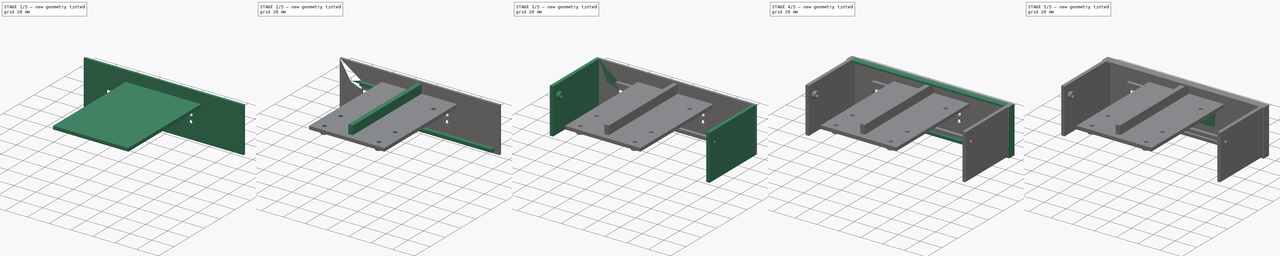
[diagram: build sequence overview — one tinted view per stage of 5, left to right]
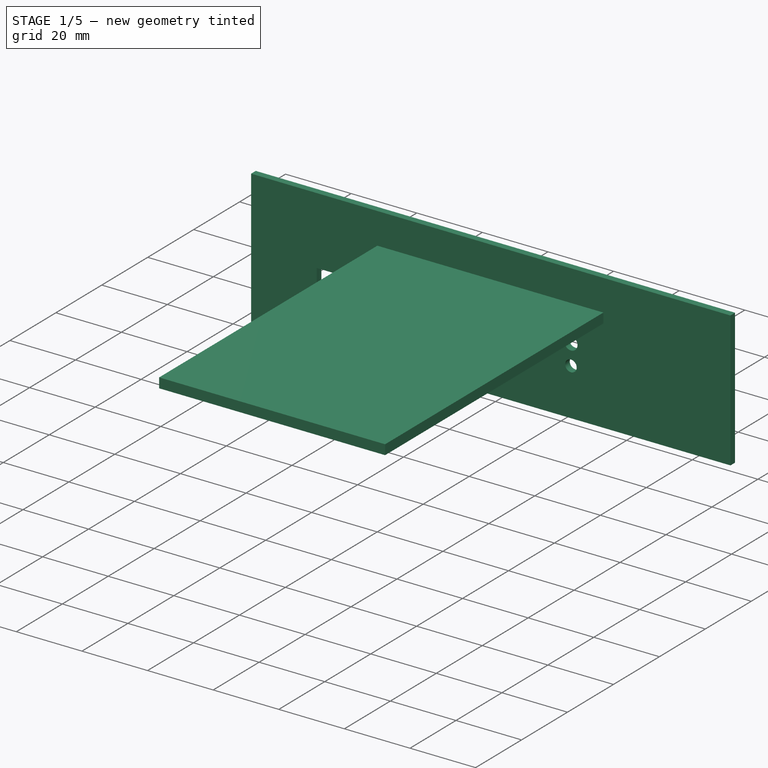
[diagram: stage 1 of 5 — iso view after this stage's code; geometry added in this stage tinted green]
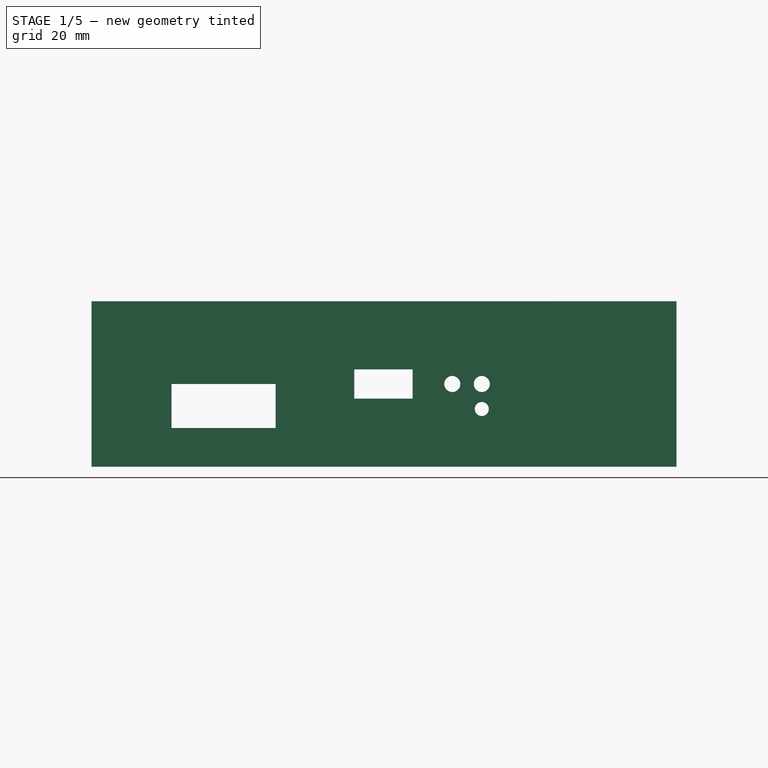
[diagram: stage 1 of 5 — front view after this stage's code; geometry added in this stage tinted green]
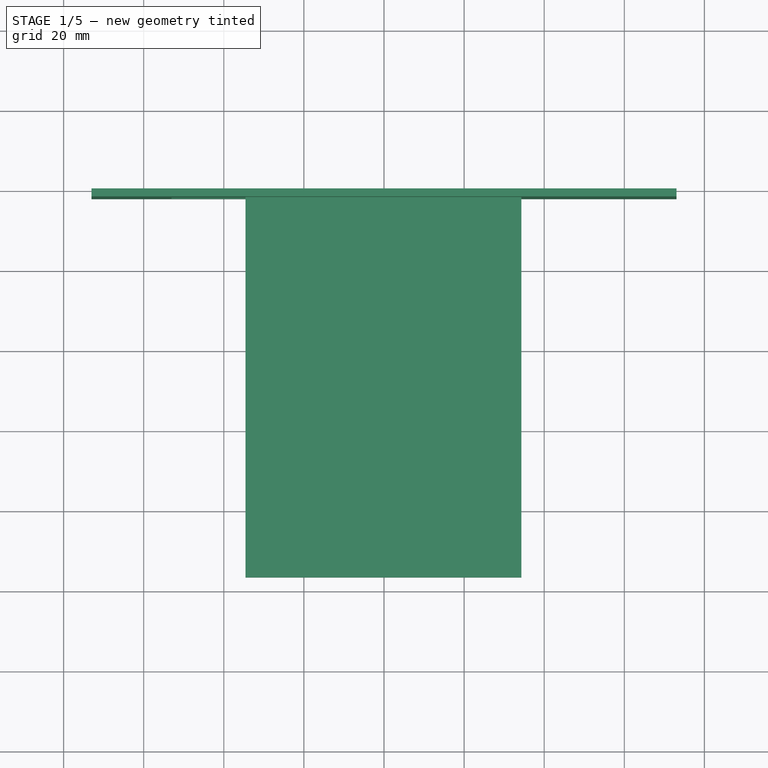
[diagram: stage 1 of 5 — top view after this stage's code; geometry added in this stage tinted green]
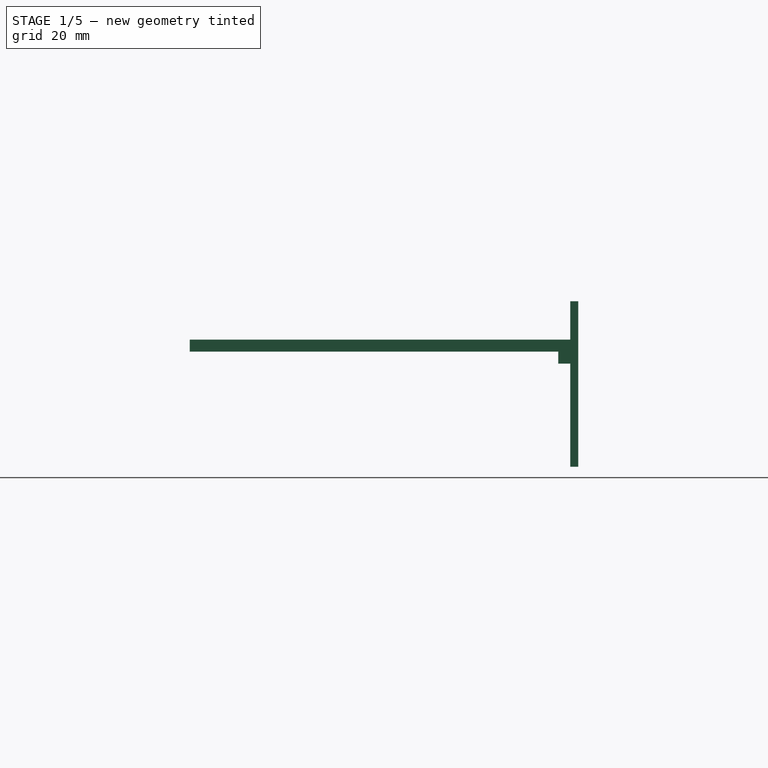
[diagram: stage 1 of 5 — right view after this stage's code; geometry added in this stage tinted green]
FCSTD DOCUMENT  (FreeCAD 0.21R33771 (Git))
Label: 525gotek
License: All rights reserved
LicenseURL: http://en.wikipedia.org/wiki/All_rights_reserved
objects: Sketcher::SketchObject×20, PartDesign::Pad×13, PartDesign::Pocket×7, PartDesign::Body×2, PartDesign::Fillet×2
note: 66 computed .brp shape members not serialized (recipe doc carries the construction recipe); baked Part::Feature solids carry a one-line shape summary decoded from their .brp

FEATURE [Sketcher::SketchObject] Sketch
  FullyConstrained = true
  MapMode = 5
  Placement = pos=(0,0,0) rot=(1,0,0;1.5708rad)
  Support = -> [XZ_Plane]
  sketch-geometry (4):
    g0: LineSegment StartX=-73.05 StartY=20.65 StartZ=0 EndX=73.05 EndY=20.65 EndZ=0
    g1: LineSegment StartX=73.05 StartY=20.65 StartZ=0 EndX=73.05 EndY=-20.65 EndZ=0
    g2: LineSegment StartX=73.05 StartY=-20.65 StartZ=0 EndX=-73.05 EndY=-20.65 EndZ=0
    g3: LineSegment StartX=-73.05 StartY=-20.65 StartZ=0 EndX=-73.05 EndY=20.65 EndZ=0
  constraints (11):
    c: Coincident(g0,g1)
    c: Coincident(g1,g2)
    c: Coincident(g2,g3)
    c: Coincident(g3,g0)
    c: Horizontal(g0)
    c: Horizontal(g2)
    c: Vertical(g1)
    c: Vertical(g3)
    c: Symmetric(g1,g0,g-1)
    c: DistanceX(g0,g0) = 146.1
    c: DistanceY(g3,g3) = 41.3
FEATURE [PartDesign::Pad] Pad
  Direction = (0,-1,-2e-16)
  Length = 2
  Length2 = 10
  Placement = pos=(0,0,0) rot=(1,0,0;1.5708rad)
  Profile = -> Sketch
  ReferenceAxis = -> Sketch [N_Axis]
  Type = 0
FEATURE [Sketcher::SketchObject] Sketch001
  ExternalGeometry = -> [Pad]
  FullyConstrained = true
  MapMode = 5
  Placement = pos=(0,0,0) rot=(-1,0,0;1.5708rad)
  Support = -> [Pad]
  sketch-geometry (23):
    g0: Circle CenterX=24.42 CenterY=0 CenterZ=0 NormalX=0 NormalY=0 NormalZ=1 AngleXU=0 Radius=1.645
    g1: Circle CenterX=17.05 CenterY=0 CenterZ=0 NormalX=0 NormalY=0 NormalZ=1 AngleXU=0 Radius=1.645
    g2: LineSegment StartX=-7.145 StartY=3.375 StartZ=0 EndX=6.855 EndY=3.375 EndZ=0
    g3: LineSegment StartX=6.855 StartY=3.375 StartZ=0 EndX=6.855 EndY=-3.375 EndZ=0
    g4: LineSegment StartX=6.855 StartY=-3.375 StartZ=0 EndX=-7.145 EndY=-3.375 EndZ=0
    g5: LineSegment StartX=-7.145 StartY=-3.375 StartZ=0 EndX=-7.145 EndY=3.375 EndZ=0
    g6: GeomPoint X=15.405 Y=0 Z=0
    g7: GeomPoint X=26.065 Y=0 Z=0
    g8: GeomPoint X=15.405 Y=0 Z=0
    g9: Circle CenterX=24.42 CenterY=6.25 CenterZ=0 NormalX=0 NormalY=0 NormalZ=1 AngleXU=0 Radius=1.75
    g10: Circle CenterX=17.05 CenterY=0 CenterZ=0 NormalX=0 NormalY=0 NormalZ=1 AngleXU=0 Radius=2
    g11: Circle CenterX=24.42 CenterY=0 CenterZ=0 NormalX=0 NormalY=0 NormalZ=1 AngleXU=0 Radius=2
    g12: GeomPoint X=15.05 Y=0 Z=0
    g13: LineSegment StartX=-7.425 StartY=3.655 StartZ=0 EndX=7.135 EndY=3.655 EndZ=0
    g14: LineSegment StartX=7.135 StartY=3.655 StartZ=0 EndX=7.135 EndY=-3.655 EndZ=0
    g15: LineSegment StartX=7.135 StartY=-3.655 StartZ=0 EndX=-7.425 EndY=-3.655 EndZ=0
    g16: LineSegment StartX=-7.425 StartY=-3.655 StartZ=0 EndX=-7.425 EndY=3.655 EndZ=0
    g17: GeomPoint X=-0.145 Y=0 Z=0
    g18: LineSegment StartX=-53.05 StartY=11 StartZ=0 EndX=-27.05 EndY=11 EndZ=0
    g19: LineSegment StartX=-27.05 StartY=11 StartZ=0 EndX=-27.05 EndY=0 EndZ=0
    g20: LineSegment StartX=-27.05 StartY=0 StartZ=0 EndX=-53.05 EndY=0 EndZ=0
    g21: LineSegment StartX=-53.05 StartY=0 StartZ=0 EndX=-53.05 EndY=11 EndZ=0
    g22: LineSegment StartX=6.855 StartY=3.375 StartZ=0 EndX=-7.145 EndY=-3.375 EndZ=0
  constraints (58):
    c: PointOnObject(g0,g-1)
    c: PointOnObject(g1,g-1)
    c: Coincident(g2,g3)
    c: Coincident(g3,g4)
    c: Coincident(g4,g5)
    c: Coincident(g5,g2)
    c: Horizontal(g2)
    c: Horizontal(g4)
    c: Vertical(g5)
    c: Symmetric(g3,g2,g-1)
    c: Diameter(g1) = 3.29
    c: Equal(g1,g0)
    c: PointOnObject(g7,g0)
    c: Coincident(g8,g6)
    c: PointOnObject(g6,g1)
    c: PointOnObject(g6,g-1)
    c: PointOnObject(g7,g-1)
    c: DistanceX(g6,g7) = 10.66
    c: DistanceX(g2,g6) = 8.55
    c: DistanceX(g2,g2) = 14
    c: DistanceY(g5,g5) = 6.75
    c: Vertical(g0,g9)
    c: DistanceY(g0,g9) = 6.25
    c: Diameter(g9) = 3.5
    c: Coincident(g10,g1)
    c: Coincident(g11,g0)
    c: PointOnObject(g12,g10)
    c: PointOnObject(g12,g-1)
    c: DistanceX(g12,g6) = 0.355
    c: Equal(g10,g11)
    c: Coincident(g13,g14)
    c: Coincident(g14,g15)
    c: Coincident(g15,g16)
    c: Coincident(g16,g13)
    c: Horizontal(g13)
    c: Horizontal(g15)
    c: Vertical(g14)
    c: Vertical(g16)
    c: DistanceX(g3,g14) = 0.28
    c: DistanceY(g14,g3) = 0.28
    c: PointOnObject(g17,g-1)
    c: Symmetric(g13,g14,g17)
    c: Coincident(g18,g19)
    c: Coincident(g19,g20)
    c: Coincident(g20,g21)
    c: Coincident(g21,g18)
    c: Horizontal(g18)
    c: Horizontal(g20)
    c: Vertical(g19)
    c: DistanceX(g18,g18) = 26
    c: DistanceY(g21,g21) = 11
    c: Vertical(g21)
    c: PointOnObject(g19,g-1)
    c: DistanceX(g10,g-3) = 56
    c: Coincident(g22,g2)
    c: Coincident(g22,g4)
    c: PointOnObject(g17,g22)
    c: DistanceX(g-3,g18) = 20
FEATURE [PartDesign::Pocket] Pocket
  BaseFeature = -> Pad
  Direction = (0,-1,-2e-16)
  Length = 5
  Length2 = 5
  Placement = pos=(0,0,0) rot=(1,0,0;1.5708rad)
  Profile = -> Sketch001
  ReferenceAxis = -> Sketch001 [N_Axis]
  Type = 0
FEATURE [Sketcher::SketchObject] Sketch002
  ExternalGeometry = -> [Pocket]
  FullyConstrained = false
  MapMode = 5
  Placement = pos=(0,-2,-4e-16) rot=(1,0,0;1.5708rad)
  Support = -> [Pocket]
  sketch-geometry (11):
    g0: LineSegment StartX=29.3 StartY=5.095 StartZ=0 EndX=-9.53 EndY=5.095 EndZ=0
    g1: LineSegment StartX=-9.53 StartY=5.095 StartZ=0 EndX=-9.53 EndY=8.095 EndZ=0
    g2: LineSegment StartX=-9.53 StartY=8.095 StartZ=0 EndX=29.3 EndY=8.095 EndZ=0
    g3: LineSegment StartX=29.3 StartY=8.095 StartZ=0 EndX=29.3 EndY=5.095 EndZ=0
    g4: LineSegment StartX=-4.21137 StartY=-3.405 StartZ=0 EndX=-17.5797 EndY=-3.405 EndZ=0
    g5: LineSegment StartX=-17.5797 StartY=-3.405 StartZ=0 EndX=-17.5797 EndY=3.405 EndZ=0
    g6: LineSegment StartX=-17.5797 StartY=3.405 StartZ=0 EndX=-4.21137 EndY=3.405 EndZ=0
    g7: LineSegment StartX=-4.21137 StartY=3.405 StartZ=0 EndX=-4.21137 EndY=-3.405 EndZ=0
    g8: Circle CenterX=24.42 CenterY=0 CenterZ=0 NormalX=0 NormalY=0 NormalZ=1 AngleXU=0 Radius=1.85
    g9: GeomPoint X=22.57 Y=0 Z=0
    g10: GeomPoint X=22.42 Y=0 Z=0
  constraints (27):
    c: Coincident(g0,g1)
    c: Coincident(g1,g2)
    c: Coincident(g2,g3)
    c: Coincident(g3,g0)
    c: Horizontal(g2)
    c: Vertical(g1)
    c: Vertical(g3)
    c: DistanceY(g3,g3) = 3
    c: Coincident(g4,g5)
    c: Coincident(g5,g6)
    c: Coincident(g6,g7)
    c: Coincident(g7,g4)
    c: Horizontal(g4)
    c: Horizontal(g6)
    c: Vertical(g5)
    c: Symmetric(g4,g6,g-1)
    c: DistanceY(g-3,g4) = 0.25
    c: DistanceY(g4,g0) = 8.5
    c: DistanceX(g2,g2) = 38.83
    c: Coincident(g8,g-4)
    c: PointOnObject(g9,g8)
    c: PointOnObject(g10,g-4)
    c: PointOnObject(g10,g-1)
    c: PointOnObject(g9,g-1)
    c: DistanceX(g10,g9) = 0.15
    c: DistanceX(g9,g0) = 6.73
    c: Horizontal(g0)
FEATURE [PartDesign::Pad] Pad001
  BaseFeature = -> Pocket
  Direction = (0,-1,-2e-16)
  Length = 3
  Length2 = 10
  Placement = pos=(0,0,0) rot=(1,0,0;1.5708rad)
  Profile = -> Sketch002
  ReferenceAxis = -> Sketch002 [N_Axis]
  Type = 0
FEATURE [Sketcher::SketchObject] Sketch003
  ExternalGeometry = -> [Pad001]
  FullyConstrained = false
  MapMode = 5
  Placement = pos=(0,-2,-4e-16) rot=(1,0,0;1.5708rad)
  Support = -> [Pad001]
  sketch-geometry (8):
    g0: LineSegment StartX=29.3 StartY=8.095 StartZ=0 EndX=-40.2118 EndY=8.095 EndZ=0
    g1: LineSegment StartX=-40.2118 StartY=8.095 StartZ=0 EndX=-40.2118 EndY=5.095 EndZ=0
    g2: LineSegment StartX=-40.2118 StartY=5.095 StartZ=0 EndX=29.3 EndY=5.095 EndZ=0
    g3: LineSegment StartX=29.3 StartY=5.095 StartZ=0 EndX=29.3 EndY=8.095 EndZ=0
    g4: LineSegment StartX=-34.58 StartY=8.095 StartZ=0 EndX=34.3 EndY=8.095 EndZ=0
    g5: LineSegment StartX=34.3 StartY=11.095 StartZ=0 EndX=34.3 EndY=8.095 EndZ=0
    g6: LineSegment StartX=34.3 StartY=11.095 StartZ=0 EndX=-34.58 EndY=11.095 EndZ=0
    g7: LineSegment StartX=-34.58 StartY=8.095 StartZ=0 EndX=-34.58 EndY=11.095 EndZ=0
  constraints (21):
    c: DistanceX(g4,g4) = 68.88
    c: DistanceX(g0,g4) = 5
    c: Horizontal(g0)
    c: Coincident(g0,g3)
    c: Coincident(g0,g-3)
    c: Coincident(g0,g1)
    c: Coincident(g1,g2)
    c: Coincident(g2,g3)
    c: Coincident(g2,g-3)
    c: Vertical(g1)
    c: Horizontal(g2)
    c: PointOnObject(g0,g4)
    c: Horizontal(g4)
    c: DistanceY(g7,g7) = 3
    c: Coincident(g7,g4)
    c: Vertical(g7)
    c: Coincident(g6,g7)
    c: Coincident(g5,g4)
    c: Coincident(g6,g5)
    c: Horizontal(g6)
    c: Vertical(g5)
FEATURE [PartDesign::Pad] Pad002
  BaseFeature = -> Pad001
  Direction = (0,-1,-2e-16)
  Length = 95
  Length2 = 10
  Placement = pos=(0,0,0) rot=(1,0,0;1.5708rad)
  Profile = -> Sketch003
  ReferenceAxis = -> Sketch003 [N_Axis]
  Type = 0
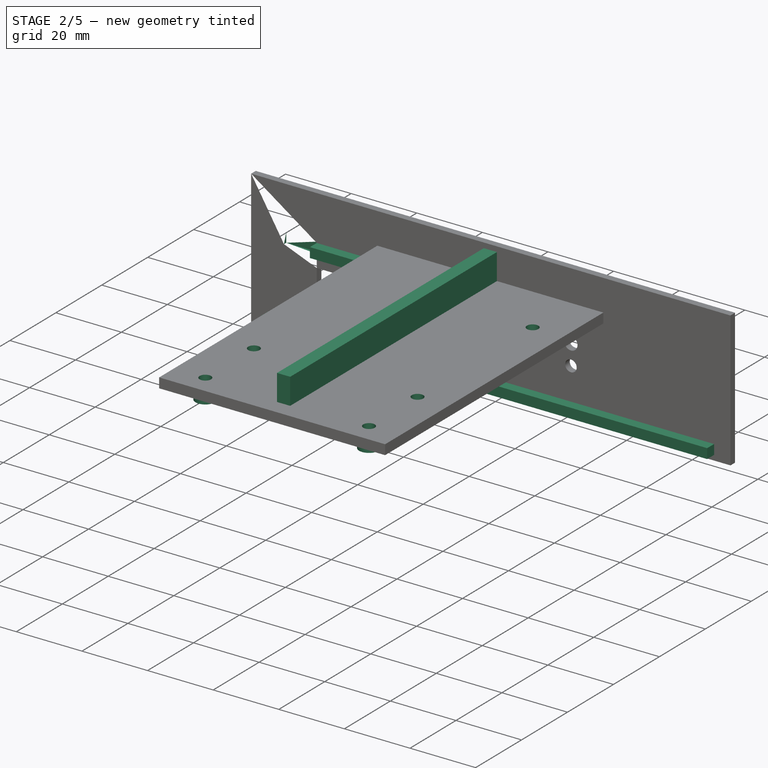
[diagram: stage 2 of 5 — iso view after this stage's code; geometry added in this stage tinted green]
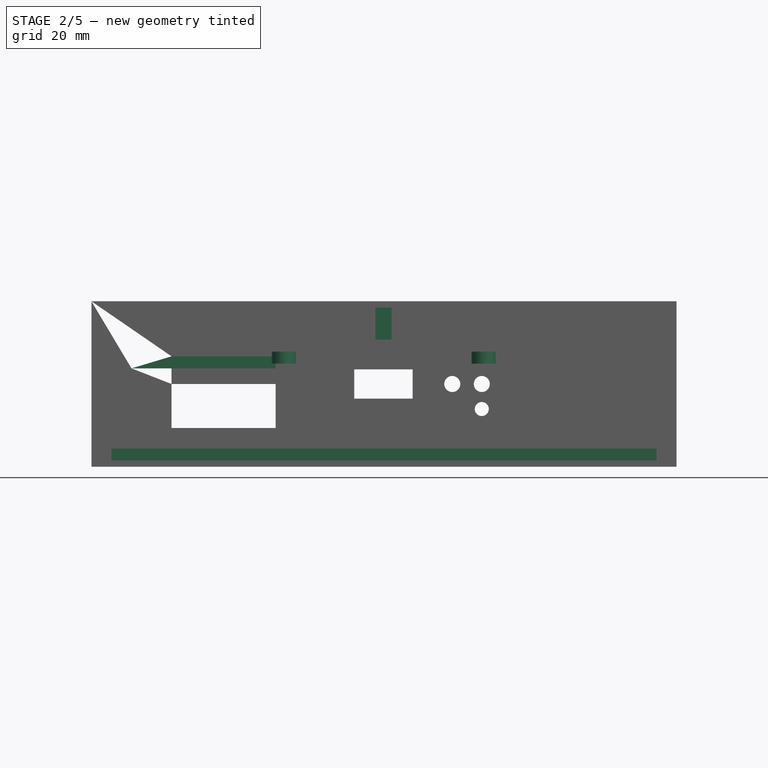
[diagram: stage 2 of 5 — front view after this stage's code; geometry added in this stage tinted green]
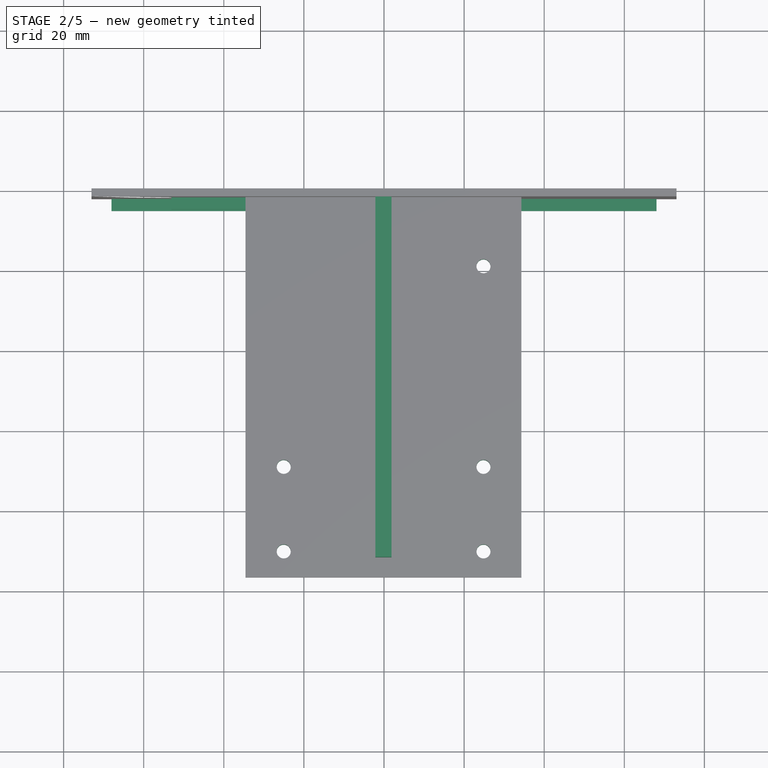
[diagram: stage 2 of 5 — top view after this stage's code; geometry added in this stage tinted green]
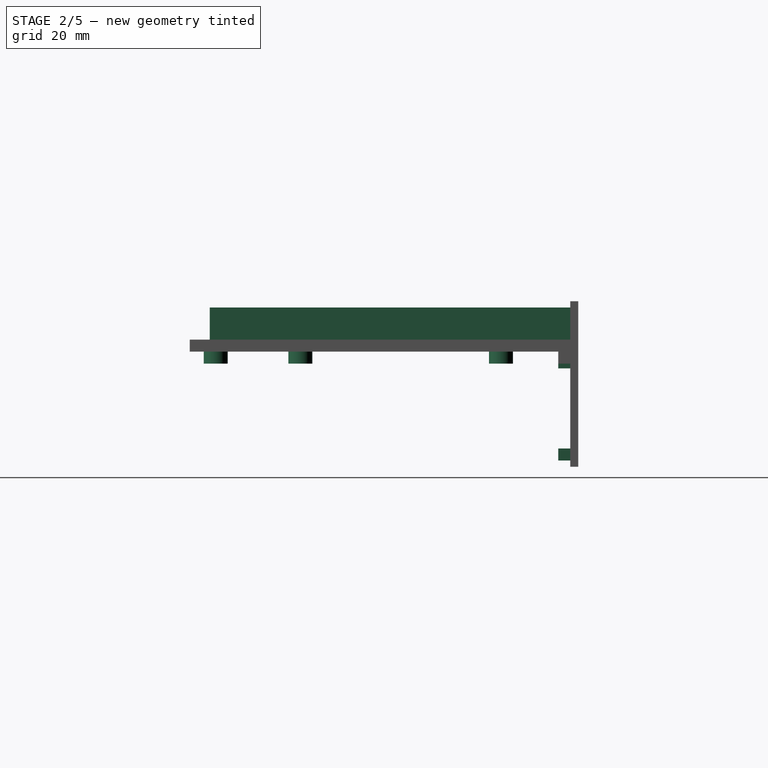
[diagram: stage 2 of 5 — right view after this stage's code; geometry added in this stage tinted green]
FEATURE [Sketcher::SketchObject] Sketch004
  ExternalGeometry = -> [Pad002]
  FullyConstrained = false
  MapMode = 5
  Placement = pos=(0,-1.8e-15,8.095) rot=(1,0,0;3.14159rad)
  Support = -> [Pad002]
  sketch-geometry (15):
    g0: LineSegment StartX=26.4 StartY=94.0918 StartZ=0 EndX=26.4 EndY=5.21614 EndZ=0
    g1: LineSegment StartX=-26.6 StartY=95.5109 StartZ=0 EndX=-26.6 EndY=9.0836 EndZ=0
    g2: Circle CenterX=24.84 CenterY=69.38 CenterZ=0 NormalX=0 NormalY=0 NormalZ=1 AngleXU=0 Radius=1.56
    g3: Circle CenterX=24.84 CenterY=90.5 CenterZ=0 NormalX=0 NormalY=0 NormalZ=1 AngleXU=0 Radius=1.56
    g4: Circle CenterX=-25.04 CenterY=90.5 CenterZ=0 NormalX=0 NormalY=0 NormalZ=1 AngleXU=0 Radius=1.56
    g5: Circle CenterX=-25.04 CenterY=69.38 CenterZ=0 NormalX=0 NormalY=0 NormalZ=1 AngleXU=0 Radius=1.56
    g6: LineSegment StartX=30.6456 StartY=17.72 StartZ=0 EndX=-49.8092 EndY=17.72 EndZ=0
    g7: Circle CenterX=24.84 CenterY=19.28 CenterZ=0 NormalX=0 NormalY=0 NormalZ=1 AngleXU=0 Radius=1.56
    g8: LineSegment StartX=19.339 StartY=70.94 StartZ=0 EndX=-43.6504 EndY=70.94 EndZ=0
    g9: LineSegment StartX=20.4825 StartY=88.94 StartZ=0 EndX=-45.1234 EndY=88.94 EndZ=0
    g10: Circle CenterX=24.84 CenterY=19.28 CenterZ=0 NormalX=0 NormalY=0 NormalZ=1 AngleXU=0 Radius=3
    g11: Circle CenterX=24.84 CenterY=69.38 CenterZ=0 NormalX=0 NormalY=0 NormalZ=1 AngleXU=0 Radius=3
    g12: Circle CenterX=24.84 CenterY=90.5 CenterZ=0 NormalX=0 NormalY=0 NormalZ=1 AngleXU=0 Radius=3
    g13: Circle CenterX=-25.04 CenterY=90.5 CenterZ=0 NormalX=0 NormalY=0 NormalZ=1 AngleXU=0 Radius=3
    g14: Circle CenterX=-25.04 CenterY=69.38 CenterZ=0 NormalX=0 NormalY=0 NormalZ=1 AngleXU=0 Radius=3
  constraints (35):
    c: Vertical(g0)
    c: Vertical(g1)
    c: Tangent(g4,g1)
    c: Tangent(g5,g1)
    c: Equal(g2,g3)
    c: Diameter(g2) = 3.12
    c: Equal(g4,g5)
    c: Equal(g5,g3)
    c: Horizontal(g4,g3)
    c: Horizontal(g5,g2)
    c: Horizontal(g6)
    c: DistanceY(g-3,g6) = 15.72
    c: Equal(g7,g2)
    c: Tangent(g7,g6)
    c: DistanceX(g0,g-4) = 2.9
    c: Horizontal(g8)
    c: Tangent(g2,g8)
    c: DistanceY(g6,g8) = 53.22
    c: Horizontal(g9)
    c: Tangent(g9,g4)
    c: DistanceY(g8,g9) = 18
    c: DistanceX(g1,g0) = 53
    c: Coincident(g10,g7)
    c: Coincident(g11,g2)
    c: Coincident(g12,g3)
    c: Coincident(g13,g4)
    c: Coincident(g14,g5)
    c: Equal(g10,g11)
    c: Equal(g11,g12)
    c: Equal(g12,g13)
    c: Equal(g13,g14)
    c: Diameter(g14) = 6
    c: Tangent(g7,g0)
    c: Vertical(g12,g11)
    c: Vertical(g11,g10)
FEATURE [PartDesign::Pad] Pad003
  BaseFeature = -> Pad002
  Direction = (0,2e-16,-1)
  Length = 3
  Length2 = 10
  Placement = pos=(0,0,0) rot=(1,0,0;1.5708rad)
  Profile = -> Sketch004
  ReferenceAxis = -> Sketch004 [N_Axis]
  Type = 0
FEATURE [Sketcher::SketchObject] Sketch005
  ExternalGeometry = -> [Pad003]
  FullyConstrained = true
  MapMode = 5
  Placement = pos=(0,-1.1e-15,5.095) rot=(1,0,0;3.14159rad)
  Support = -> [Pad003]
  sketch-geometry (5):
    g0: Circle CenterX=-25.04 CenterY=90.5 CenterZ=0 NormalX=0 NormalY=0 NormalZ=1 AngleXU=0 Radius=1.75
    g1: Circle CenterX=-25.04 CenterY=69.38 CenterZ=0 NormalX=0 NormalY=0 NormalZ=1 AngleXU=0 Radius=1.75
    g2: Circle CenterX=24.84 CenterY=90.5 CenterZ=0 NormalX=0 NormalY=0 NormalZ=1 AngleXU=0 Radius=1.75
    g3: Circle CenterX=24.84 CenterY=69.38 CenterZ=0 NormalX=0 NormalY=0 NormalZ=1 AngleXU=0 Radius=1.75
    g4: Circle CenterX=24.84 CenterY=19.28 CenterZ=0 NormalX=0 NormalY=0 NormalZ=1 AngleXU=0 Radius=1.75
  constraints (10):
    c: Coincident(g0,g-3)
    c: Coincident(g1,g-4)
    c: Coincident(g2,g-5)
    c: Coincident(g3,g-6)
    c: Coincident(g4,g-7)
    c: Equal(g4,g3)
    c: Equal(g3,g2)
    c: Equal(g2,g0)
    c: Equal(g0,g1)
    c: Diameter(g1) = 3.5
FEATURE [PartDesign::Pocket] Pocket001
  BaseFeature = -> Pad003
  Direction = (0,-2e-16,1)
  Length = 5
  Length2 = 5
  Placement = pos=(0,0,0) rot=(1,0,0;1.5708rad)
  Profile = -> Sketch005
  ReferenceAxis = -> Sketch005 [N_Axis]
  Type = 1
FEATURE [Sketcher::SketchObject] Sketch006
  ExternalGeometry = -> [Pocket001]
  FullyConstrained = false
  MapMode = 5
  Placement = pos=(0,-2.5e-15,11.095) rot=(0,0,1;3.14159rad)
  Support = -> [Pocket001]
  sketch-geometry (5):
    g0: LineSegment StartX=0.14 StartY=100.877 StartZ=0 EndX=0.14 EndY=68.1977 EndZ=0
    g1: LineSegment StartX=-1.86 StartY=92 StartZ=0 EndX=2.14 EndY=92 EndZ=0
    g2: LineSegment StartX=2.14 StartY=92 StartZ=0 EndX=2.14 EndY=2 EndZ=0
    g3: LineSegment StartX=2.14 StartY=2 StartZ=0 EndX=-1.86 EndY=2 EndZ=0
    g4: LineSegment StartX=-1.86 StartY=2 StartZ=0 EndX=-1.86 EndY=92 EndZ=0
  constraints (12):
    c: Symmetric(g-4,g-4,g0)
    c: Coincident(g1,g2)
    c: Coincident(g2,g3)
    c: Coincident(g3,g4)
    c: Coincident(g4,g1)
    c: Horizontal(g3)
    c: Vertical(g2)
    c: Vertical(g4)
    c: PointOnObject(g2,g-3)
    c: Symmetric(g1,g1,g0)
    c: DistanceX(g1,g1) = 4
    c: DistanceY(g1,g-4) = 5
FEATURE [PartDesign::Pad] Pad004
  BaseFeature = -> Pocket001
  Direction = (0,-2e-16,1)
  Length = 8
  Length2 = 10
  Placement = pos=(0,0,0) rot=(1,0,0;1.5708rad)
  Profile = -> Sketch006
  ReferenceAxis = -> Sketch006 [N_Axis]
  Type = 0
FEATURE [Sketcher::SketchObject] Sketch007
  ExternalGeometry = -> [Pad004]
  FullyConstrained = false
  MapMode = 5
  Placement = pos=(0,-2,-4e-16) rot=(1,0,0;1.5708rad)
  Support = -> [Pad004]
  sketch-geometry (10):
    g0: LineSegment StartX=68.05 StartY=-19.095 StartZ=0 EndX=-68.05 EndY=-19.095 EndZ=0
    g1: LineSegment StartX=-68.05 StartY=-19.095 StartZ=0 EndX=-68.05 EndY=-16.095 EndZ=0
    g2: LineSegment StartX=-53.05 StartY=6.905 StartZ=0 EndX=-27.05 EndY=6.905 EndZ=0
    g3: LineSegment StartX=-27.05 StartY=6.905 StartZ=0 EndX=-27.05 EndY=3.905 EndZ=0
    g4: LineSegment StartX=-27.05 StartY=3.905 StartZ=0 EndX=-53.05 EndY=3.905 EndZ=0
    g5: LineSegment StartX=-53.05 StartY=3.905 StartZ=0 EndX=-53.05 EndY=6.905 EndZ=0
    g6: LineSegment StartX=-33.8803 StartY=-5.5 StartZ=0 EndX=-70.2787 EndY=-5.5 EndZ=0
    g7: LineSegment StartX=68.05 StartY=-19.095 StartZ=0 EndX=68.05 EndY=-16.095 EndZ=0
    g8: LineSegment StartX=-68.05 StartY=-16.095 StartZ=0 EndX=68.05 EndY=-16.095 EndZ=0
    g9: GeomPoint X=-28.04 Y=-16.095 Z=0
  constraints (26):
    c: Coincident(g0,g1)
    c: Horizontal(g0)
    c: Vertical(g1)
    c: Coincident(g2,g3)
    c: Coincident(g3,g4)
    c: Coincident(g4,g5)
    c: Coincident(g5,g2)
    c: Horizontal(g2)
    c: Horizontal(g4)
    c: Vertical(g3)
    c: Vertical(g5)
    c: DistanceY(g1,g4) = 20
    c: Equal(g5,g1)
    c: DistanceY(g5,g5) = 3
    c: Vertical(g-3,g4)
    c: Vertical(g3,g-3)
    c: Coincident(g7,g0)
    c: Vertical(g7)
    c: Coincident(g8,g1)
    c: Coincident(g8,g7)
    c: Horizontal(g8)
    c: PointOnObject(g9,g8)
    c: Symmetric(g-3,g-4,g6)
    c: Symmetric(g-5,g9,g6)
    c: DistanceX(g0,g-8) = 5
    c: DistanceX(g-7,g0) = 5
FEATURE [PartDesign::Pad] Pad005
  BaseFeature = -> Pad004
  Direction = (0,-1,-2e-16)
  Length = 3
  Length2 = 10
  Placement = pos=(0,0,0) rot=(1,0,0;1.5708rad)
  Profile = -> Sketch007
  ReferenceAxis = -> Sketch007 [N_Axis]
  Type = 0
FEATURE [Sketcher::SketchObject] Sketch008
  ExternalGeometry = -> [Pad005]
  FullyConstrained = true
  MapMode = 5
  Placement = pos=(0,-2,-4e-16) rot=(1,0,0;1.5708rad)
  Support = -> [Pad005]
  sketch-geometry (8):
    g0: LineSegment StartX=-63.05 StartY=6.905 StartZ=0 EndX=-53.05 EndY=6.905 EndZ=0
    g1: LineSegment StartX=-53.05 StartY=6.905 StartZ=0 EndX=-53.05 EndY=6.905 EndZ=0
    g2: LineSegment StartX=-53.05 StartY=6.905 StartZ=0 EndX=-63.05 EndY=6.905 EndZ=0
    g3: LineSegment StartX=-63.05 StartY=6.905 StartZ=0 EndX=-63.05 EndY=6.905 EndZ=0
    g4: LineSegment StartX=-53.05 StartY=6.905 StartZ=0 EndX=-63.05 EndY=6.905 EndZ=0
    g5: LineSegment StartX=-63.05 StartY=6.905 StartZ=0 EndX=-63.05 EndY=3.905 EndZ=0
    g6: LineSegment StartX=-63.05 StartY=3.905 StartZ=0 EndX=-53.05 EndY=3.905 EndZ=0
    g7: LineSegment StartX=-53.05 StartY=3.905 StartZ=0 EndX=-53.05 EndY=6.905 EndZ=0
  constraints (22):
    c: Coincident(g0,g1)
    c: Coincident(g1,g2)
    c: Coincident(g2,g3)
    c: Coincident(g3,g0)
    c: Horizontal(g0)
    c: Horizontal(g2)
    c: Vertical(g1)
    c: Vertical(g3)
    c: Horizontal(g1,g-3)
    c: Coincident(g4,g5)
    c: Coincident(g5,g6)
    c: Coincident(g6,g7)
    c: Coincident(g7,g4)
    c: Horizontal(g4)
    c: Horizontal(g6)
    c: Vertical(g5)
    c: Vertical(g7)
    c: Horizontal(g6,g-4)
    c: Coincident(g-3,g0)
    c: Coincident(g4,g-4)
    c: Equal(g2,g6)
    c: DistanceX(g2,g2) = 10
FEATURE [PartDesign::Pocket] Pocket002
  BaseFeature = -> Pad005
  Direction = (0,1,2e-16)
  Length = 1
  Length2 = 5
  Placement = pos=(0,0,0) rot=(1,0,0;1.5708rad)
  Profile = -> Sketch008
  ReferenceAxis = -> Sketch008 [N_Axis]
  Type = 0
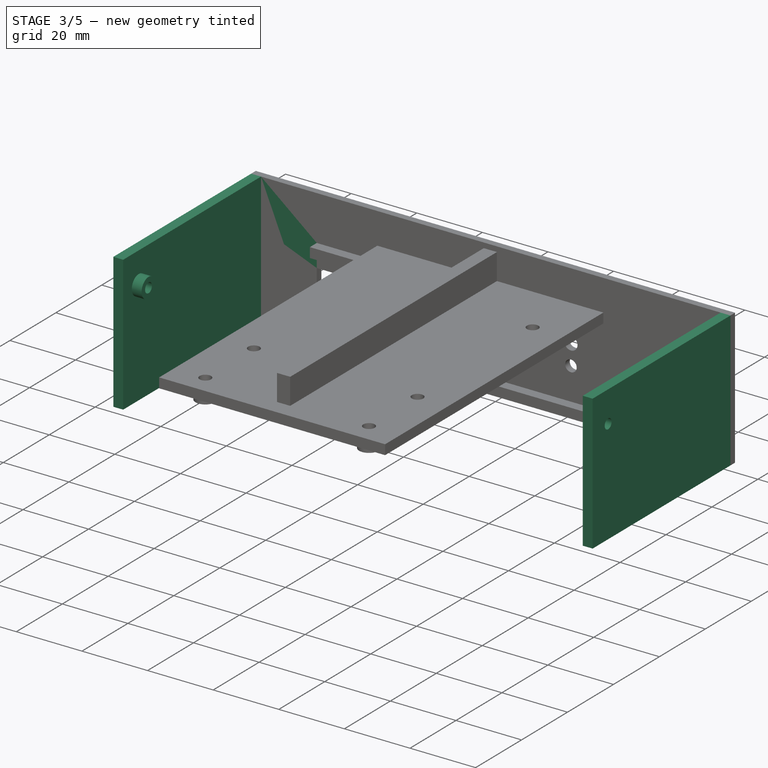
[diagram: stage 3 of 5 — iso view after this stage's code; geometry added in this stage tinted green]
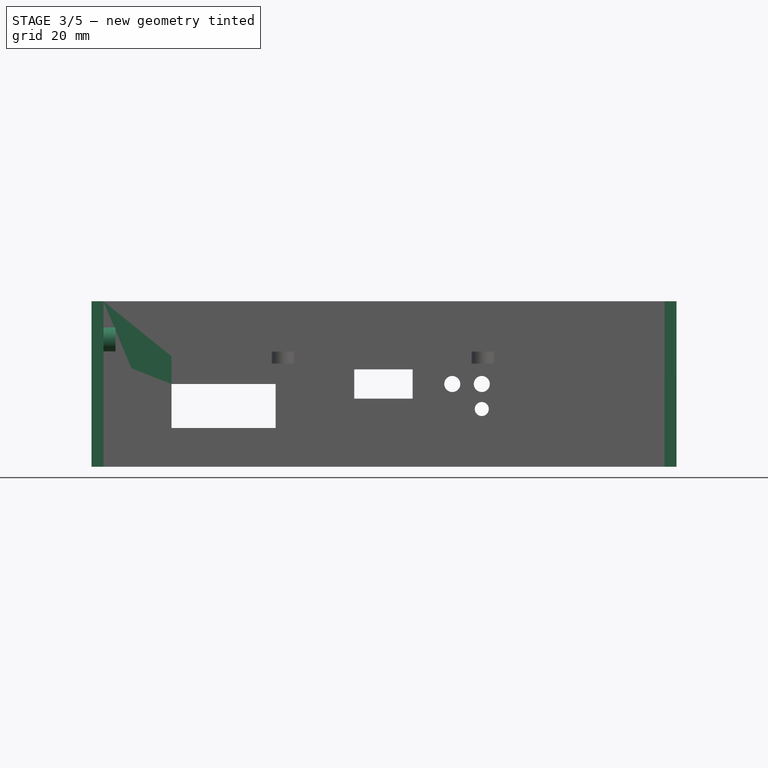
[diagram: stage 3 of 5 — front view after this stage's code; geometry added in this stage tinted green]
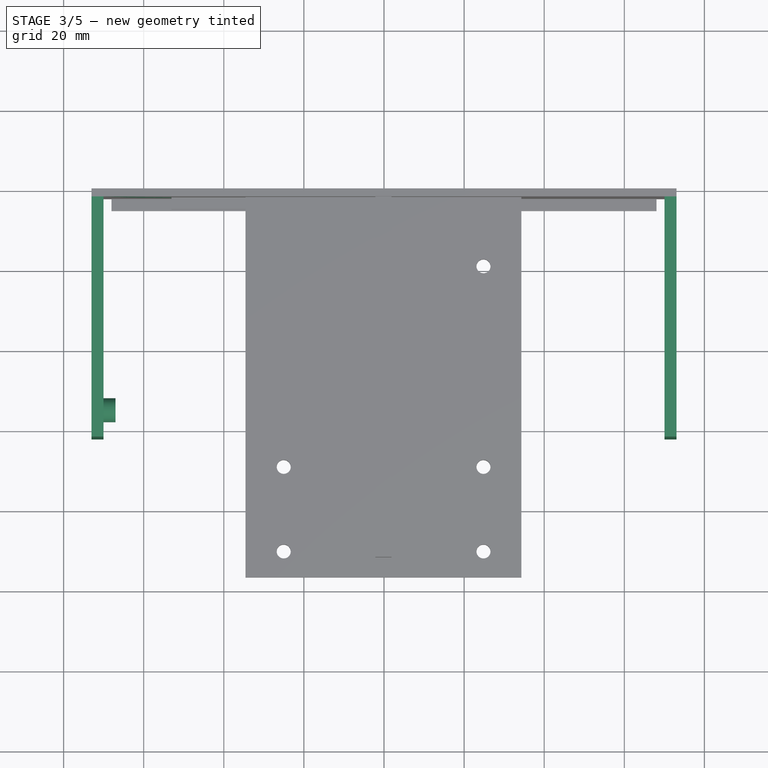
[diagram: stage 3 of 5 — top view after this stage's code; geometry added in this stage tinted green]
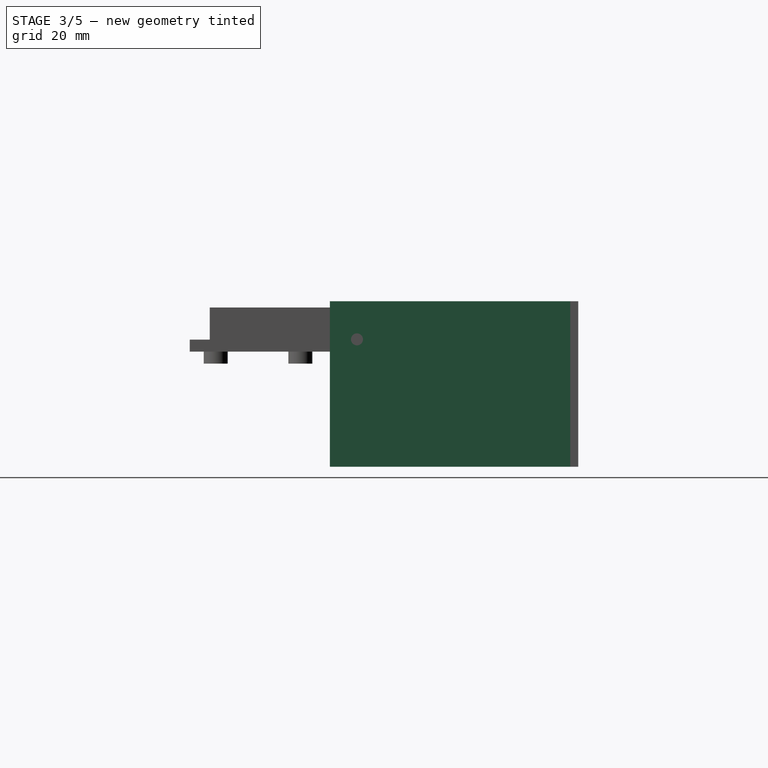
[diagram: stage 3 of 5 — right view after this stage's code; geometry added in this stage tinted green]
FEATURE [PartDesign::Body] Body001  label="screen support"
  Group = -> [Sketch011,Pad008,Sketch012,Pocket003,Sketch013,Pocket004,Sketch014,Pad009]
  Origin = -> Origin001
  Placement = pos=(-40.5,-4,-6) rot=(0,0,1;0rad)
  Tip = -> Pad009
FEATURE [Sketcher::SketchObject] Sketch015
  ExternalGeometry = -> [Pocket002]
  FullyConstrained = true
  MapMode = 5
  Placement = pos=(0,-2,-4e-16) rot=(1,0,0;1.5708rad)
  Support = -> [Pocket002]
  sketch-geometry (8):
    g0: LineSegment StartX=-73.05 StartY=20.65 StartZ=0 EndX=-70.05 EndY=20.65 EndZ=0
    g1: LineSegment StartX=-70.05 StartY=20.65 StartZ=0 EndX=-70.05 EndY=-20.65 EndZ=0
    g2: LineSegment StartX=-70.05 StartY=-20.65 StartZ=0 EndX=-73.05 EndY=-20.65 EndZ=0
    g3: LineSegment StartX=-73.05 StartY=-20.65 StartZ=0 EndX=-73.05 EndY=20.65 EndZ=0
    g4: LineSegment StartX=73.05 StartY=20.65 StartZ=0 EndX=70.05 EndY=20.65 EndZ=0
    g5: LineSegment StartX=70.05 StartY=20.65 StartZ=0 EndX=70.05 EndY=-20.65 EndZ=0
    g6: LineSegment StartX=70.05 StartY=-20.65 StartZ=0 EndX=73.05 EndY=-20.65 EndZ=0
    g7: LineSegment StartX=73.05 StartY=-20.65 StartZ=0 EndX=73.05 EndY=20.65 EndZ=0
  constraints (22):
    c: Coincident(g0,g1)
    c: Coincident(g1,g2)
    c: Coincident(g2,g3)
    c: Coincident(g3,g0)
    c: Horizontal(g0)
    c: Horizontal(g2)
    c: Vertical(g1)
    c: Vertical(g3)
    c: Coincident(g0,g-5)
    c: PointOnObject(g1,g-6)
    c: Coincident(g4,g5)
    c: Coincident(g5,g6)
    c: Coincident(g6,g7)
    c: Coincident(g7,g4)
    c: Horizontal(g4)
    c: Horizontal(g6)
    c: Vertical(g5)
    c: Vertical(g7)
    c: Coincident(g4,g-5)
    c: PointOnObject(g5,g-6)
    c: DistanceX(g0,g0) = 3
    c: Equal(g4,g0)
FEATURE [PartDesign::Pad] Pad010
  BaseFeature = -> Pocket002
  Direction = (0,-1,-2e-16)
  Length = 60
  Length2 = 10
  Placement = pos=(0,0,0) rot=(1,0,0;1.5708rad)
  Profile = -> Sketch015
  ReferenceAxis = -> Sketch015 [N_Axis]
  Type = 0
FEATURE [Sketcher::SketchObject] Sketch016
  ExternalGeometry = -> [Pad010]
  FullyConstrained = false
  MapMode = 5
  Placement = pos=(-73.05,0,0) rot=(0.707107,0,-0.707107;3.14159rad)
  Support = -> [Pad010]
  sketch-geometry (6):
    g0: LineSegment StartX=-11.15 StartY=76.7559 StartZ=0 EndX=-11.15 EndY=-16.6865 EndZ=0
    g1: Circle CenterX=-11.15 CenterY=55.25 CenterZ=0 NormalX=0 NormalY=0 NormalZ=1 AngleXU=0 Radius=1.5
    g2: GeomPoint X=-11.15 Y=53.75 Z=0
    g3: LineSegment StartX=29.4618 StartY=55.25 StartZ=0 EndX=-23.4591 EndY=55.25 EndZ=0
    g4: GeomPoint X=-12.65 Y=55.25 Z=0
    g5: LineSegment StartX=26.3771 StartY=7.5 StartZ=0 EndX=-31.3488 EndY=7.5 EndZ=0
  constraints (13):
    c: Vertical(g0)
    c: PointOnObject(g1,g0)
    c: PointOnObject(g2,g0)
    c: PointOnObject(g2,g1)
    c: Horizontal(g3)
    c: PointOnObject(g1,g3)
    c: Diameter(g1) = 3
    c: PointOnObject(g4,g1)
    c: PointOnObject(g4,g3)
    c: DistanceX(g-4,g4) = 8
    c: Horizontal(g5)
    c: DistanceY(g-3,g5) = 7.5
    c: DistanceY(g5,g2) = 46.25
FEATURE [PartDesign::Pocket] Pocket005
  BaseFeature = -> Pad010
  Direction = (1,0,2e-16)
  Length = 5
  Length2 = 5
  Placement = pos=(0,0,0) rot=(1,0,0;1.5708rad)
  Profile = -> Sketch016
  ReferenceAxis = -> Sketch016 [N_Axis]
  Type = 2
FEATURE [Sketcher::SketchObject] Sketch017
  ExternalGeometry = -> [Pocket005]
  FullyConstrained = true
  MapMode = 5
  Placement = pos=(73.05,0,0) rot=(0.707107,0,0.707107;3.14159rad)
  Support = -> [Pocket005]
  sketch-geometry (1):
    g0: Circle CenterX=11.15 CenterY=55.25 CenterZ=0 NormalX=0 NormalY=0 NormalZ=1 AngleXU=0 Radius=1.5
  constraints (2):
    c: Coincident(g0,g-3)
    c: Equal(g-3,g0)
FEATURE [PartDesign::Pocket] Pocket006
  BaseFeature = -> Pocket005
  Direction = (-1,0,2e-16)
  Length = 5
  Length2 = 5
  Placement = pos=(0,0,0) rot=(1,0,0;1.5708rad)
  Profile = -> Sketch017
  ReferenceAxis = -> Sketch017 [N_Axis]
  Type = 2
FEATURE [Sketcher::SketchObject] Sketch018
  ExternalGeometry = -> [Pocket006]
  FullyConstrained = true
  MapMode = 5
  Placement = pos=(-70.05,0,0) rot=(0.707107,0,0.707107;3.14159rad)
  Support = -> [Pocket006]
  sketch-geometry (2):
    g0: Circle CenterX=11.15 CenterY=55.25 CenterZ=0 NormalX=0 NormalY=0 NormalZ=1 AngleXU=0 Radius=1.5
    g1: Circle CenterX=11.15 CenterY=55.25 CenterZ=0 NormalX=0 NormalY=0 NormalZ=1 AngleXU=0 Radius=3
  constraints (4):
    c: Coincident(g0,g-3)
    c: Equal(g0,g-3)
    c: Coincident(g1,g0)
    c: Diameter(g1) = 6
FEATURE [PartDesign::Pad] Pad011
  BaseFeature = -> Pocket006
  Direction = (1,0,-2e-16)
  Length = 3
  Length2 = 10
  Placement = pos=(0,0,0) rot=(1,0,0;1.5708rad)
  Profile = -> Sketch018
  ReferenceAxis = -> Sketch018 [N_Axis]
  Type = 0
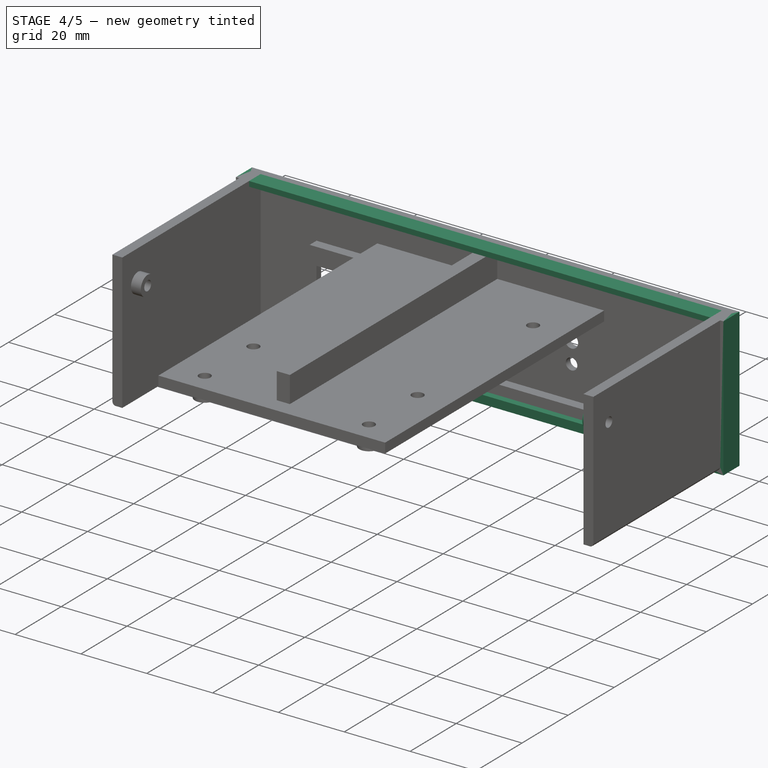
[diagram: stage 4 of 5 — iso view after this stage's code; geometry added in this stage tinted green]
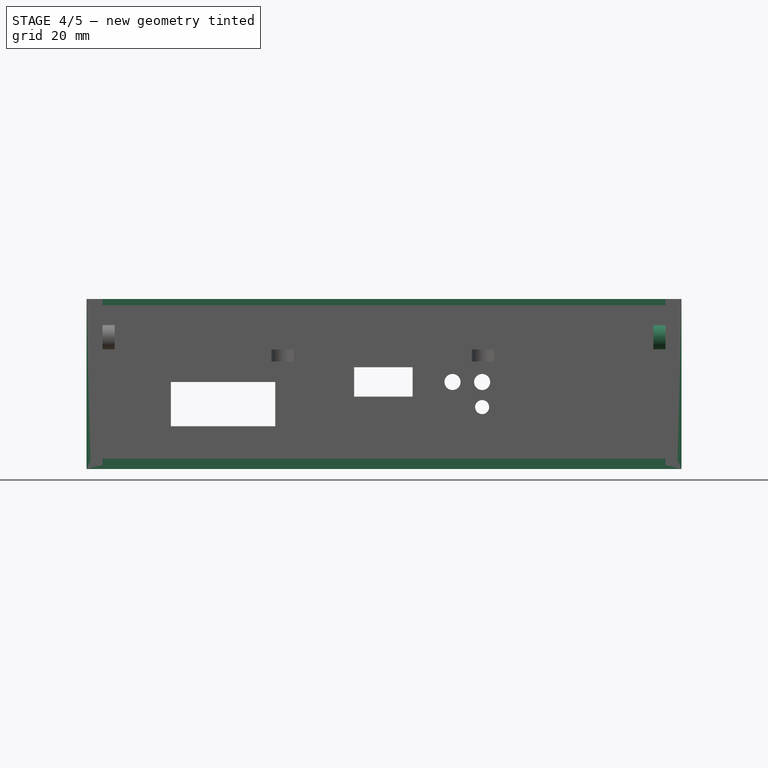
[diagram: stage 4 of 5 — front view after this stage's code; geometry added in this stage tinted green]
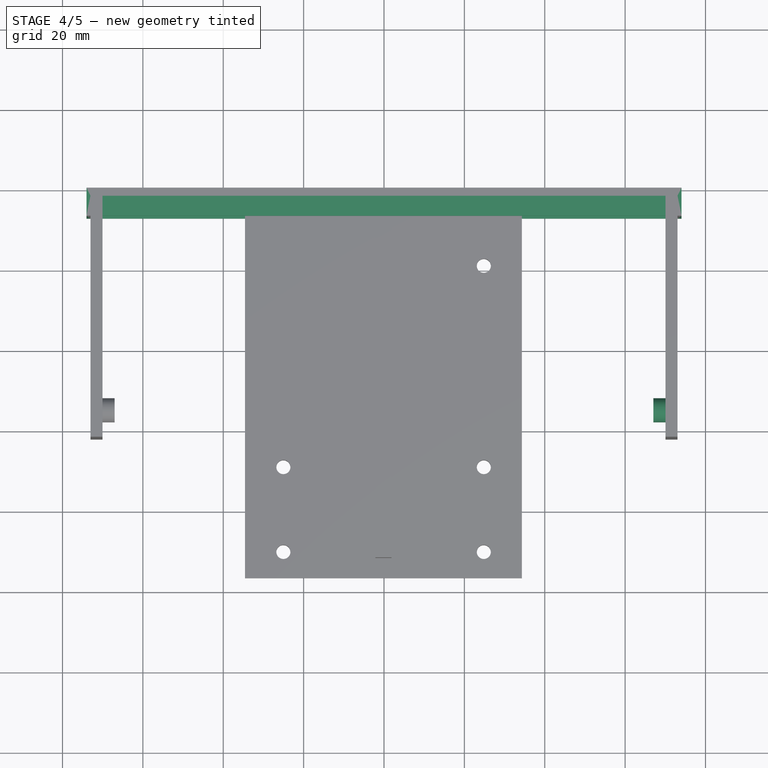
[diagram: stage 4 of 5 — top view after this stage's code; geometry added in this stage tinted green]
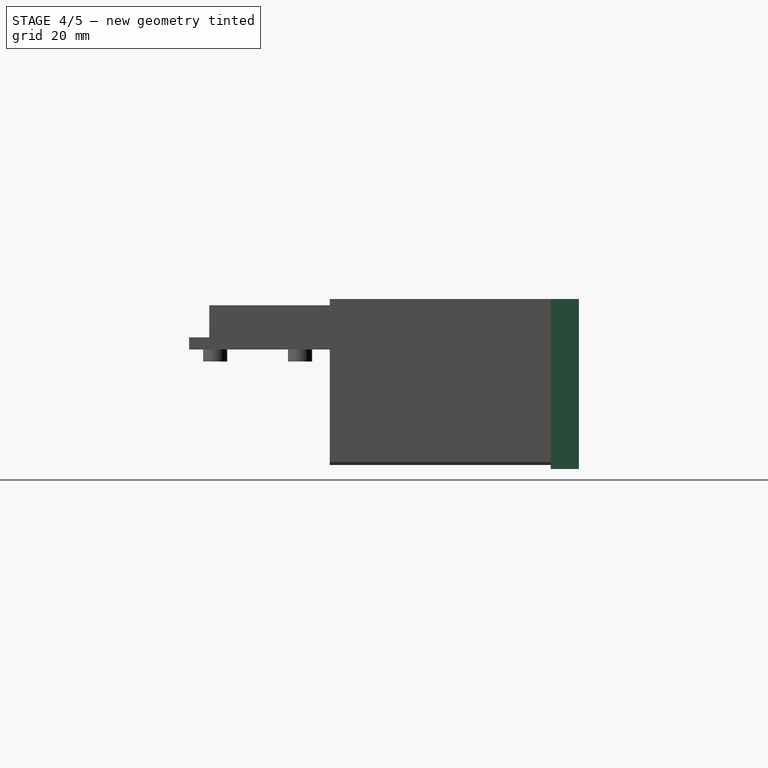
[diagram: stage 4 of 5 — right view after this stage's code; geometry added in this stage tinted green]
FEATURE [Sketcher::SketchObject] Sketch019
  ExternalGeometry = -> [Pad011]
  FullyConstrained = true
  MapMode = 5
  Placement = pos=(70.05,0,0) rot=(0.707107,0,-0.707107;3.14159rad)
  Support = -> [Pad011]
  sketch-geometry (2):
    g0: Circle CenterX=-11.15 CenterY=55.25 CenterZ=0 NormalX=0 NormalY=0 NormalZ=1 AngleXU=0 Radius=1.5
    g1: Circle CenterX=-11.15 CenterY=55.25 CenterZ=0 NormalX=0 NormalY=0 NormalZ=1 AngleXU=0 Radius=3
  constraints (4):
    c: Coincident(g0,g-4)
    c: Coincident(g1,g0)
    c: Equal(g0,g-4)
    c: Equal(g-3,g1)
FEATURE [PartDesign::Pad] Pad012
  BaseFeature = -> Pad011
  Direction = (-1,0,-2e-16)
  Length = 3
  Length2 = 10
  Placement = pos=(0,0,0) rot=(1,0,0;1.5708rad)
  Profile = -> Sketch019
  ReferenceAxis = -> Sketch019 [N_Axis]
  Type = 0
FEATURE [Sketcher::SketchObject] Sketch020
  ExternalGeometry = -> [Pad012]
  FullyConstrained = true
  MapMode = 5
  Placement = pos=(0,-2,-4e-16) rot=(1,0,0;1.5708rad)
  Support = -> [Pad012]
  sketch-geometry (8):
    g0: LineSegment StartX=-70.05 StartY=-20.65 StartZ=0 EndX=70.05 EndY=-20.65 EndZ=0
    g1: LineSegment StartX=70.05 StartY=-20.65 StartZ=0 EndX=70.05 EndY=-19.095 EndZ=0
    g2: LineSegment StartX=70.05 StartY=-19.095 StartZ=0 EndX=-70.05 EndY=-19.095 EndZ=0
    g3: LineSegment StartX=-70.05 StartY=-19.095 StartZ=0 EndX=-70.05 EndY=-20.65 EndZ=0
    g4: LineSegment StartX=-70.05 StartY=20.65 StartZ=0 EndX=70.05 EndY=20.65 EndZ=0
    g5: LineSegment StartX=70.05 StartY=20.65 StartZ=0 EndX=70.05 EndY=19.095 EndZ=0
    g6: LineSegment StartX=70.05 StartY=19.095 StartZ=0 EndX=-70.05 EndY=19.095 EndZ=0
    g7: LineSegment StartX=-70.05 StartY=19.095 StartZ=0 EndX=-70.05 EndY=20.65 EndZ=0
  constraints (21):
    c: Coincident(g0,g1)
    c: Coincident(g1,g2)
    c: Coincident(g2,g3)
    c: Coincident(g3,g0)
    c: Horizontal(g2)
    c: Vertical(g1)
    c: Vertical(g3)
    c: Coincident(g0,g-4)
    c: Horizontal(g1,g-3)
    c: Coincident(g-4,g0)
    c: Coincident(g4,g5)
    c: Coincident(g5,g6)
    c: Coincident(g6,g7)
    c: Coincident(g7,g4)
    c: Horizontal(g4)
    c: Horizontal(g6)
    c: Vertical(g5)
    c: Vertical(g7)
    c: Coincident(g4,g-5)
    c: PointOnObject(g5,g-6)
    c: Equal(g1,g5)
FEATURE [PartDesign::Pad] Pad013
  BaseFeature = -> Pad012
  Direction = (0,-1,-2e-16)
  Length = 5
  Length2 = 10
  Placement = pos=(0,0,0) rot=(1,0,0;1.5708rad)
  Profile = -> Sketch020
  ReferenceAxis = -> Sketch020 [N_Axis]
  Type = 0
FEATURE [Sketcher::SketchObject] Sketch021
  ExternalGeometry = -> [Pad013]
  FullyConstrained = true
  MapMode = 5
  Placement = pos=(0,0,0) rot=(-1,0,0;1.5708rad)
  Support = -> [Pad013]
  sketch-geometry (8):
    g0: LineSegment StartX=-73.05 StartY=20.65 StartZ=0 EndX=-73.05 EndY=-20.65 EndZ=0
    g1: LineSegment StartX=-73.05 StartY=-20.65 StartZ=0 EndX=-74.05 EndY=-20.65 EndZ=0
    g2: LineSegment StartX=-74.05 StartY=-20.65 StartZ=0 EndX=-74.05 EndY=21.65 EndZ=0
    g3: LineSegment StartX=-73.05 StartY=20.65 StartZ=0 EndX=73.05 EndY=20.65 EndZ=0
    g4: LineSegment StartX=73.05 StartY=-20.65 StartZ=0 EndX=73.05 EndY=20.65 EndZ=0
    g5: LineSegment StartX=73.05 StartY=-20.65 StartZ=0 EndX=74.05 EndY=-20.65 EndZ=0
    g6: LineSegment StartX=74.05 StartY=-20.65 StartZ=0 EndX=74.05 EndY=21.65 EndZ=0
    g7: LineSegment StartX=74.05 StartY=21.65 StartZ=0 EndX=-74.05 EndY=21.65 EndZ=0
  constraints (20):
    c: Coincident(g0,g-3)
    c: Coincident(g0,g-3)
    c: Coincident(g1,g0)
    c: Coincident(g2,g1)
    c: Vertical(g2)
    c: Coincident(g3,g0)
    c: Coincident(g3,g-4)
    c: Coincident(g4,g-4)
    c: Coincident(g4,g3)
    c: Coincident(g5,g4)
    c: Horizontal(g5)
    c: Coincident(g6,g5)
    c: Vertical(g6)
    c: Coincident(g7,g6)
    c: Coincident(g7,g2)
    c: Horizontal(g7)
    c: Horizontal(g1)
    c: Equal(g1,g5)
    c: DistanceX(g1,g1) = 1
    c: DistanceY(g0,g2) = 1
FEATURE [PartDesign::Pad] Pad014
  BaseFeature = -> Pad013
  Direction = (0,1,2e-16)
  Length = 7
  Length2 = 10
  Placement = pos=(0,0,0) rot=(1,0,0;1.5708rad)
  Profile = -> Sketch021
  ReferenceAxis = -> Sketch021 [N_Axis]
  Reversed = true
  Type = 0
FEATURE [PartDesign::Fillet] Fillet
  Base = -> Pad014 [Edge74]
  BaseFeature = -> Pad014
  Placement = pos=(0,0,0) rot=(1,0,0;1.5708rad)
  Radius = 1
  SupportTransform = false
  UseAllEdges = false
FEATURE [PartDesign::Fillet] Fillet001
  Base = -> Fillet [Edge31]
  BaseFeature = -> Fillet
  Placement = pos=(0,0,0) rot=(1,0,0;1.5708rad)
  Radius = 1
  SupportTransform = false
  UseAllEdges = false
FEATURE [PartDesign::Body] Body
  Group = -> [Sketch,Pad,Sketch001,Pocket,Sketch002,Pad001,Sketch003,Pad002,Sketch004,Pad003,Sketch005,Pocket001,Sketch006,Pad004,Sketch007,Pad005,Sketch008,Pocket002,Sketch015,Pad010,Sketch016,Pocket005,Sketch017,Pocket006,Sketch018,Pad011,Sketch019,Pad012,Sketch020,Pad013,Sketch021,Pad014,Fillet,Fillet001]
  Origin = -> Origin
  Tip = -> Fillet001
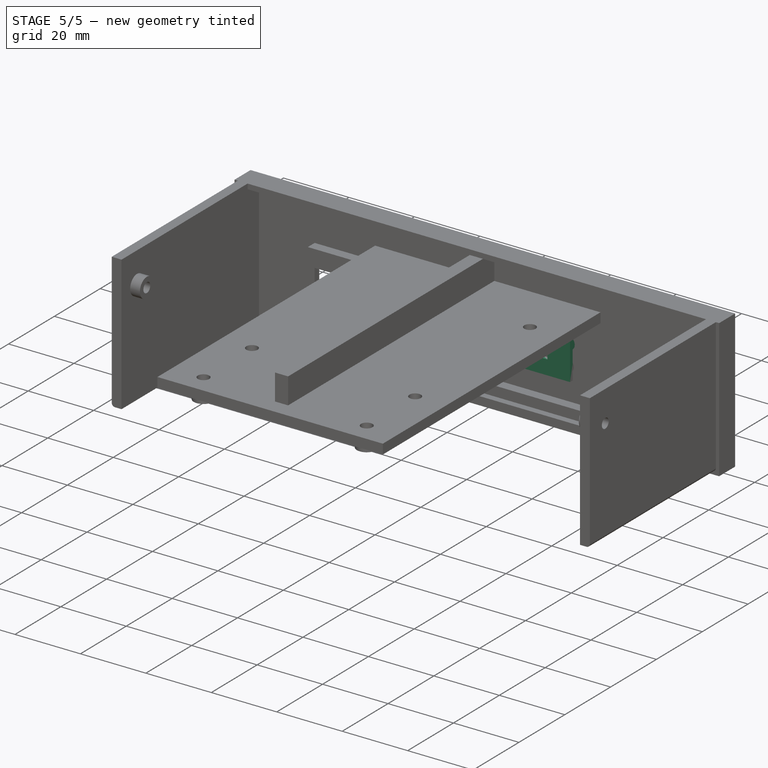
[diagram: stage 5 of 5 — iso view after this stage's code; geometry added in this stage tinted green]
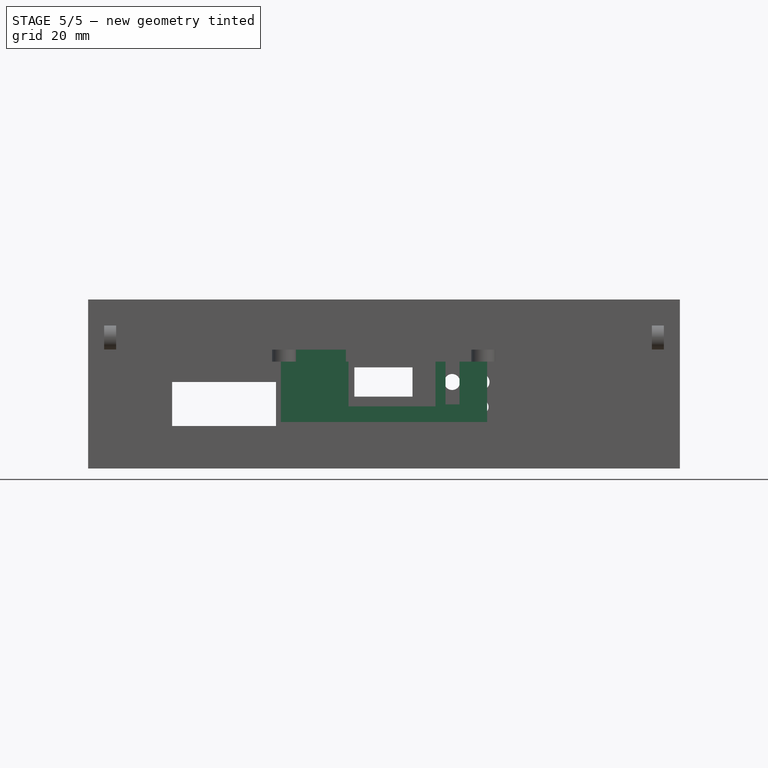
[diagram: stage 5 of 5 — front view after this stage's code; geometry added in this stage tinted green]
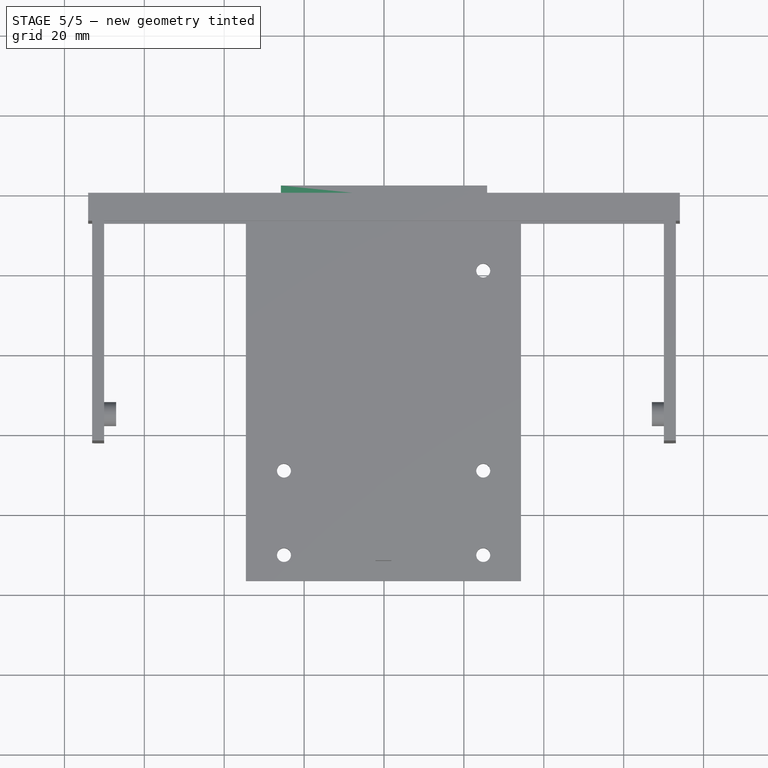
[diagram: stage 5 of 5 — top view after this stage's code; geometry added in this stage tinted green]
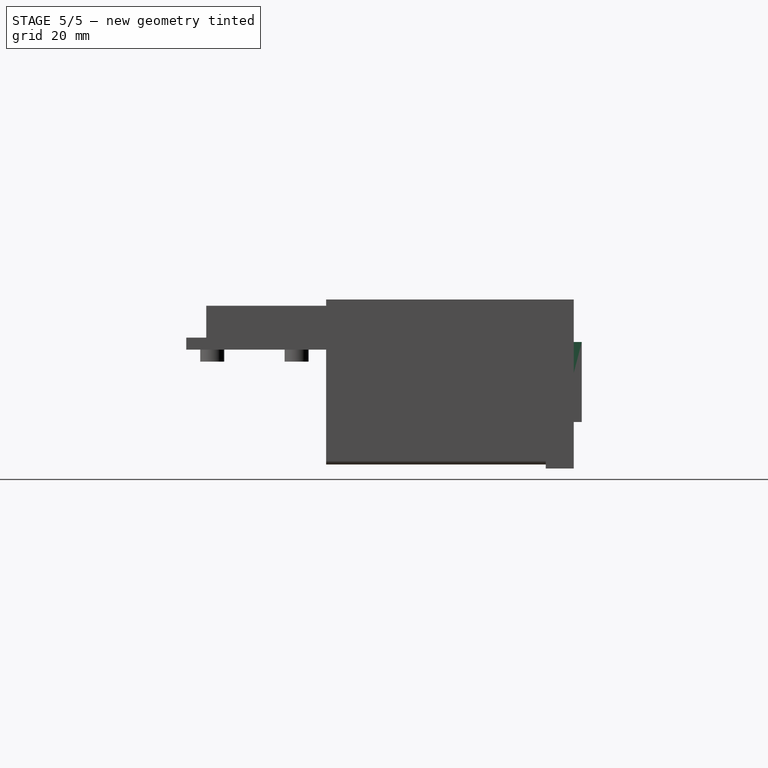
[diagram: stage 5 of 5 — right view after this stage's code; geometry added in this stage tinted green]
FEATURE [Sketcher::SketchObject] Sketch011
  FullyConstrained = true
  MapMode = 5
  Placement = pos=(0,0,0) rot=(1,0,0;1.5708rad)
  Support = -> [XZ_Plane001]
  sketch-geometry (8):
    g0: LineSegment StartX=-18.8 StartY=6 StartZ=0 EndX=18.8 EndY=6 EndZ=0
    g1: LineSegment StartX=18.8 StartY=6 StartZ=0 EndX=18.8 EndY=-6 EndZ=0
    g2: LineSegment StartX=18.8 StartY=-6 StartZ=0 EndX=-18.8 EndY=-6 EndZ=0
    g3: LineSegment StartX=-18.8 StartY=-6 StartZ=0 EndX=-18.8 EndY=6 EndZ=0
    g4: LineSegment StartX=-20.8 StartY=8 StartZ=0 EndX=20.8 EndY=8 EndZ=0
    g5: LineSegment StartX=20.8 StartY=8 StartZ=0 EndX=20.8 EndY=-8 EndZ=0
    g6: LineSegment StartX=20.8 StartY=-8 StartZ=0 EndX=-20.8 EndY=-8 EndZ=0
    g7: LineSegment StartX=-20.8 StartY=-8 StartZ=0 EndX=-20.8 EndY=8 EndZ=0
  constraints (22):
    c: Coincident(g0,g1)
    c: Coincident(g1,g2)
    c: Coincident(g2,g3)
    c: Coincident(g3,g0)
    c: Horizontal(g0)
    c: Horizontal(g2)
    c: Vertical(g1)
    c: Vertical(g3)
    c: Symmetric(g1,g0,g-1)
    c: DistanceY(g3,g3) = 12
    c: DistanceX(g0,g0) = 37.6
    c: Coincident(g4,g5)
    c: Coincident(g5,g6)
    c: Coincident(g6,g7)
    c: Coincident(g7,g4)
    c: Horizontal(g4)
    c: Horizontal(g6)
    c: Vertical(g5)
    c: Vertical(g7)
    c: Symmetric(g5,g4,g-1)
    c: DistanceX(g6,g2) = 2
    c: DistanceY(g6,g2) = 2
FEATURE [PartDesign::Pad] Pad008
  Direction = (0,-1,2e-16)
  Length = 3.18
  Length2 = 10
  Placement = pos=(0,0,0) rot=(1,0,0;1.5708rad)
  Profile = -> Sketch011
  ReferenceAxis = -> Sketch011 [N_Axis]
  Type = 0
FEATURE [Sketcher::SketchObject] Sketch012
  FullyConstrained = true
  MapMode = 5
  Placement = pos=(0,0,0) rot=(-1,0,0;1.5708rad)
  Support = -> [Pad008]
  sketch-geometry (8):
    g0: LineSegment StartX=-18.8 StartY=6 StartZ=0 EndX=18.8 EndY=6 EndZ=0
    g1: LineSegment StartX=18.8 StartY=6 StartZ=0 EndX=18.8 EndY=-6 EndZ=0
    g2: LineSegment StartX=18.8 StartY=-6 StartZ=0 EndX=-18.8 EndY=-6 EndZ=0
    g3: LineSegment StartX=-18.8 StartY=-6 StartZ=0 EndX=-18.8 EndY=6 EndZ=0
    g4: LineSegment StartX=-18.9 StartY=6.1 StartZ=0 EndX=18.9 EndY=6.1 EndZ=0
    g5: LineSegment StartX=18.9 StartY=6.1 StartZ=0 EndX=18.9 EndY=-6.1 EndZ=0
    g6: LineSegment StartX=18.9 StartY=-6.1 StartZ=0 EndX=-18.9 EndY=-6.1 EndZ=0
    g7: LineSegment StartX=-18.9 StartY=-6.1 StartZ=0 EndX=-18.9 EndY=6.1 EndZ=0
  constraints (22):
    c: Coincident(g0,g1)
    c: Coincident(g1,g2)
    c: Coincident(g2,g3)
    c: Coincident(g3,g0)
    c: Horizontal(g0)
    c: Horizontal(g2)
    c: Vertical(g1)
    c: Vertical(g3)
    c: Symmetric(g1,g0,g-1)
    c: DistanceY(g3,g3) = 12
    c: DistanceX(g0,g0) = 37.6
    c: Coincident(g4,g5)
    c: Coincident(g5,g6)
    c: Coincident(g6,g7)
    c: Coincident(g7,g4)
    c: Horizontal(g4)
    c: Horizontal(g6)
    c: Vertical(g5)
    c: Vertical(g7)
    c: Symmetric(g5,g4,g-1)
    c: DistanceX(g6,g2) = 0.1
    c: DistanceY(g6,g2) = 0.1
FEATURE [PartDesign::Pocket] Pocket003
  BaseFeature = -> Pad008
  Direction = (0,-1,2e-16)
  Length = 1.18
  Length2 = 5
  Placement = pos=(0,0,0) rot=(1,0,0;1.5708rad)
  Profile = -> Sketch012
  ReferenceAxis = -> Sketch012 [N_Axis]
  Type = 0
FEATURE [Sketcher::SketchObject] Sketch013
  ExternalGeometry = -> [Pocket003]
  FullyConstrained = true
  MapMode = 5
  Placement = pos=(0,-1.18,3e-16) rot=(-1,0,0;1.5708rad)
  Support = -> [Pocket003]
  sketch-geometry (16):
    g0: LineSegment StartX=18.9 StartY=6.1 StartZ=0 EndX=12.9 EndY=6.1 EndZ=0
    g1: LineSegment StartX=12.9 StartY=6.1 StartZ=0 EndX=12.9 EndY=-6.1 EndZ=0
    g2: LineSegment StartX=12.9 StartY=-6.1 StartZ=0 EndX=18.9 EndY=-6.1 EndZ=0
    g3: LineSegment StartX=18.9 StartY=-6.1 StartZ=0 EndX=18.9 EndY=6.1 EndZ=0
    g4: LineSegment StartX=-18.9 StartY=6.1 StartZ=0 EndX=-8.9 EndY=6.1 EndZ=0
    g5: LineSegment StartX=-8.9 StartY=6.1 StartZ=0 EndX=-8.9 EndY=-6.1 EndZ=0
    g6: LineSegment StartX=-8.9 StartY=-6.1 StartZ=0 EndX=-18.9 EndY=-6.1 EndZ=0
    g7: LineSegment StartX=-18.9 StartY=-6.1 StartZ=0 EndX=-18.9 EndY=6.1 EndZ=0
    g8: LineSegment StartX=-8.9 StartY=6.1 StartZ=0 EndX=12.9 EndY=6.1 EndZ=0
    g9: LineSegment StartX=12.9 StartY=6.1 StartZ=0 EndX=12.9 EndY=-6.1 EndZ=0
    g10: LineSegment StartX=12.9 StartY=-6.1 StartZ=0 EndX=-8.9 EndY=-6.1 EndZ=0
    g11: LineSegment StartX=-8.9 StartY=-6.1 StartZ=0 EndX=-8.9 EndY=6.1 EndZ=0
    g12: LineSegment StartX=18.9 StartY=5.6 StartZ=0 EndX=15.4 EndY=5.6 EndZ=0
    g13: LineSegment StartX=15.4 StartY=5.6 StartZ=0 EndX=15.4 EndY=-5.6 EndZ=0
    g14: LineSegment StartX=15.4 StartY=-5.6 StartZ=0 EndX=18.9 EndY=-5.6 EndZ=0
    g15: LineSegment StartX=18.9 StartY=-5.6 StartZ=0 EndX=18.9 EndY=5.6 EndZ=0
  constraints (43):
    c: Coincident(g0,g1)
    c: Coincident(g1,g2)
    c: Coincident(g2,g3)
    c: Coincident(g3,g0)
    c: Horizontal(g0)
    c: Horizontal(g2)
    c: Vertical(g1)
    c: Vertical(g3)
    c: Coincident(g0,g-4)
    c: PointOnObject(g1,g-5)
    c: DistanceX(g1,g2) = 6
    c: Coincident(g4,g5)
    c: Coincident(g5,g6)
    c: Coincident(g6,g7)
    c: Coincident(g7,g4)
    c: Horizontal(g4)
    c: Horizontal(g6)
    c: Vertical(g5)
    c: Vertical(g7)
    c: PointOnObject(g4,g-4)
    c: Coincident(g6,g-6)
    c: DistanceX(g6,g5) = 10
    c: Coincident(g8,g9)
    c: Coincident(g9,g10)
    c: Coincident(g10,g11)
    c: Coincident(g11,g8)
    c: Horizontal(g8)
    c: Horizontal(g10)
    c: Vertical(g9)
    c: Vertical(g11)
    c: Coincident(g8,g4)
    c: Coincident(g9,g1)
    c: Coincident(g12,g13)
    c: Coincident(g13,g14)
    c: Coincident(g14,g15)
    c: Coincident(g15,g12)
    c: Horizontal(g12)
    c: Horizontal(g14)
    c: Vertical(g13)
    c: PointOnObject(g12,g3)
    c: Symmetric(g12,g14,g-1)
    c: DistanceX(g12,g12) = 3.5
    c: DistanceY(g2,g14) = 0.5
FEATURE [PartDesign::Pocket] Pocket004
  BaseFeature = -> Pocket003
  Direction = (0,-1,2e-16)
  Length = 5
  Length2 = 5
  Placement = pos=(0,0,0) rot=(1,0,0;1.5708rad)
  Profile = -> Sketch013
  ReferenceAxis = -> Sketch013 [N_Axis]
  Type = 0
FEATURE [Sketcher::SketchObject] Sketch014
  ExternalGeometry = -> [Pocket004]
  FullyConstrained = true
  MapMode = 5
  Placement = pos=(0,-3.18,7e-16) rot=(1,0,0;1.5708rad)
  Support = -> [Pocket004]
  sketch-geometry (8):
    g0: LineSegment StartX=-20.8 StartY=8 StartZ=0 EndX=20.8 EndY=8 EndZ=0
    g1: LineSegment StartX=20.8 StartY=8 StartZ=0 EndX=20.8 EndY=-8 EndZ=0
    g2: LineSegment StartX=20.8 StartY=-8 StartZ=0 EndX=-20.8 EndY=-8 EndZ=0
    g3: LineSegment StartX=-20.8 StartY=-8 StartZ=0 EndX=-20.8 EndY=8 EndZ=0
    g4: LineSegment StartX=-25.8 StartY=10 StartZ=0 EndX=25.8 EndY=10 EndZ=0
    g5: LineSegment StartX=25.8 StartY=10 StartZ=0 EndX=25.8 EndY=-10 EndZ=0
    g6: LineSegment StartX=25.8 StartY=-10 StartZ=0 EndX=-25.8 EndY=-10 EndZ=0
    g7: LineSegment StartX=-25.8 StartY=-10 StartZ=0 EndX=-25.8 EndY=10 EndZ=0
  constraints (21):
    c: Coincident(g0,g1)
    c: Coincident(g1,g2)
    c: Coincident(g2,g3)
    c: Coincident(g3,g0)
    c: Horizontal(g0)
    c: Horizontal(g2)
    c: Vertical(g1)
    c: Vertical(g3)
    c: Coincident(g0,g-3)
    c: Coincident(g1,g-4)
    c: Coincident(g4,g5)
    c: Coincident(g5,g6)
    c: Coincident(g6,g7)
    c: Coincident(g7,g4)
    c: Horizontal(g4)
    c: Horizontal(g6)
    c: Vertical(g5)
    c: Vertical(g7)
    c: DistanceY(g6,g2) = 2
    c: DistanceX(g6,g2) = 5
    c: Symmetric(g4,g5,g-1)
FEATURE [PartDesign::Pad] Pad009
  BaseFeature = -> Pocket004
  Direction = (0,-1,2e-16)
  Length = 5.18
  Length2 = 10
  Placement = pos=(0,0,0) rot=(1,0,0;1.5708rad)
  Profile = -> Sketch014
  ReferenceAxis = -> Sketch014 [N_Axis]
  Reversed = true
  Type = 0
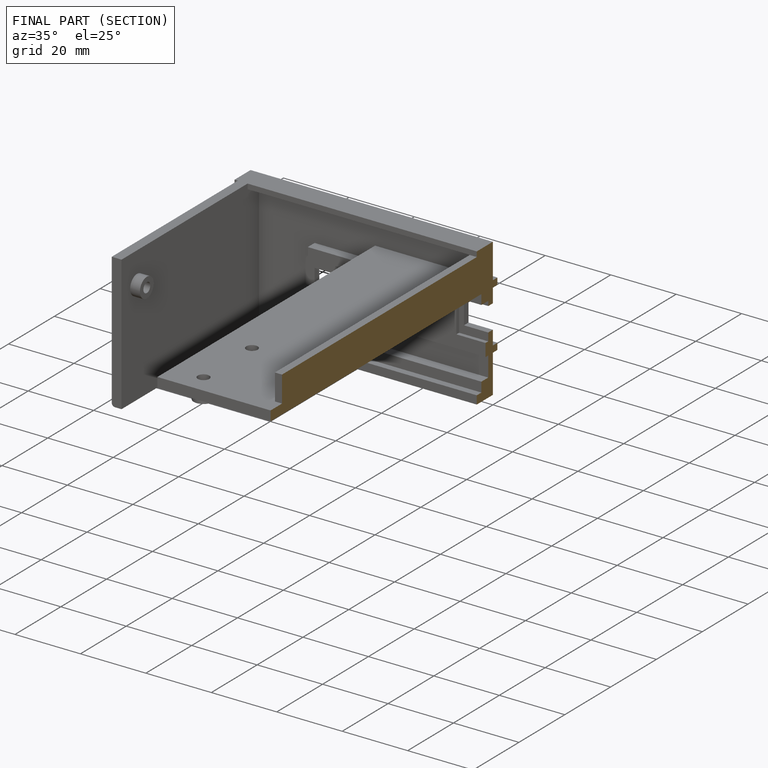
[diagram: finished part — half-section view (interior)]
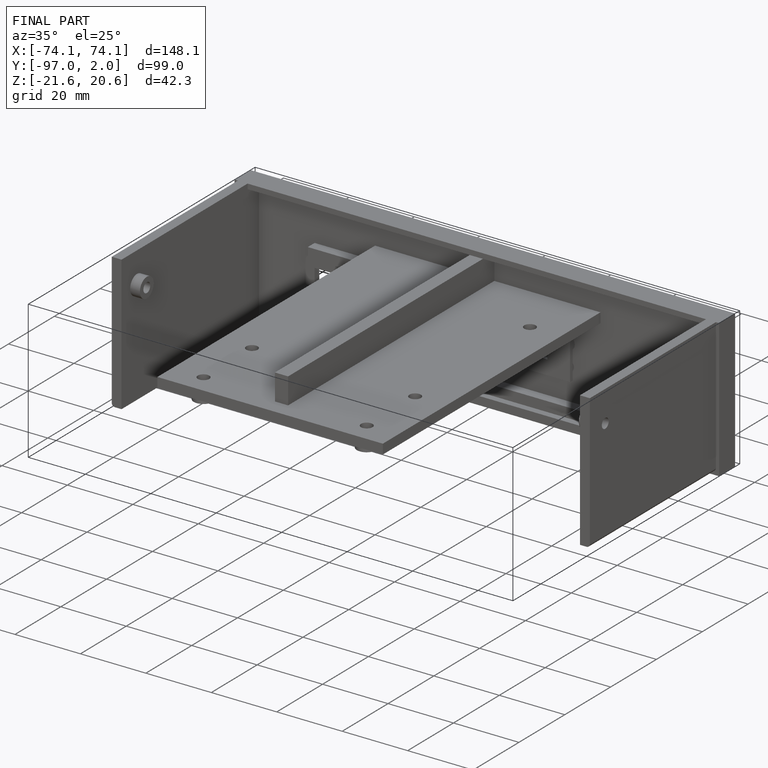
[diagram: finished part — iso view with bounding-box wireframe]
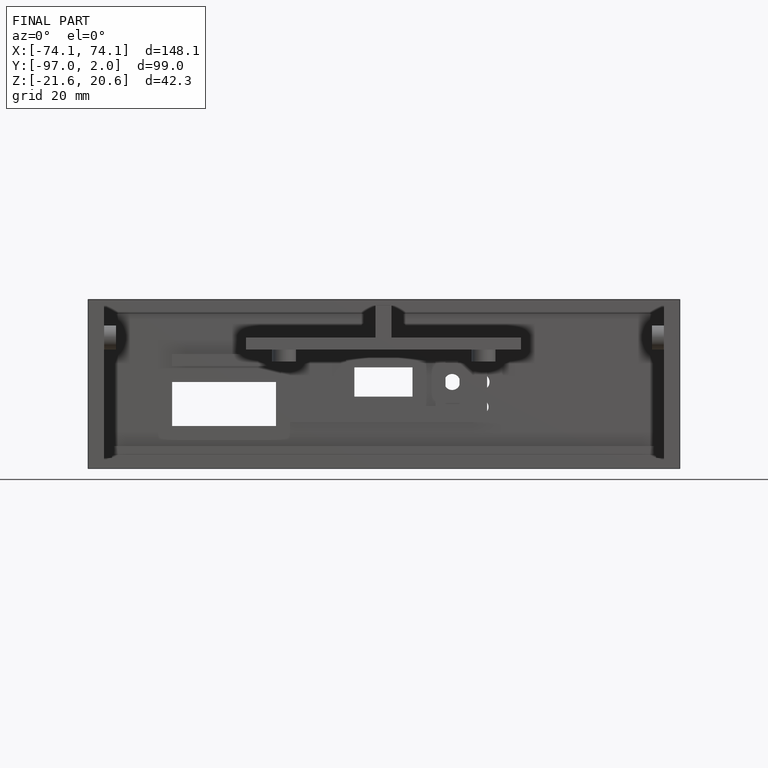
[diagram: finished part — front view with bounding-box wireframe]
